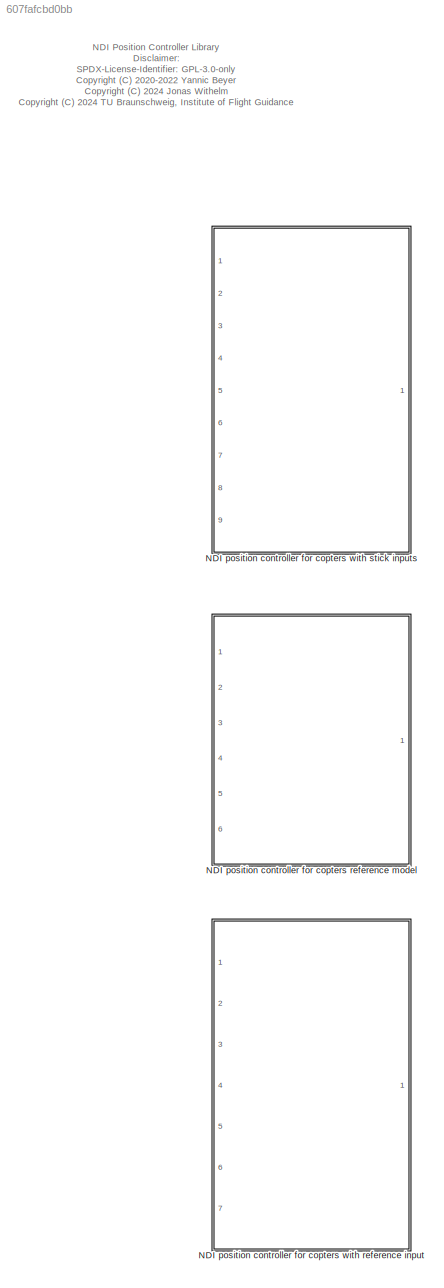
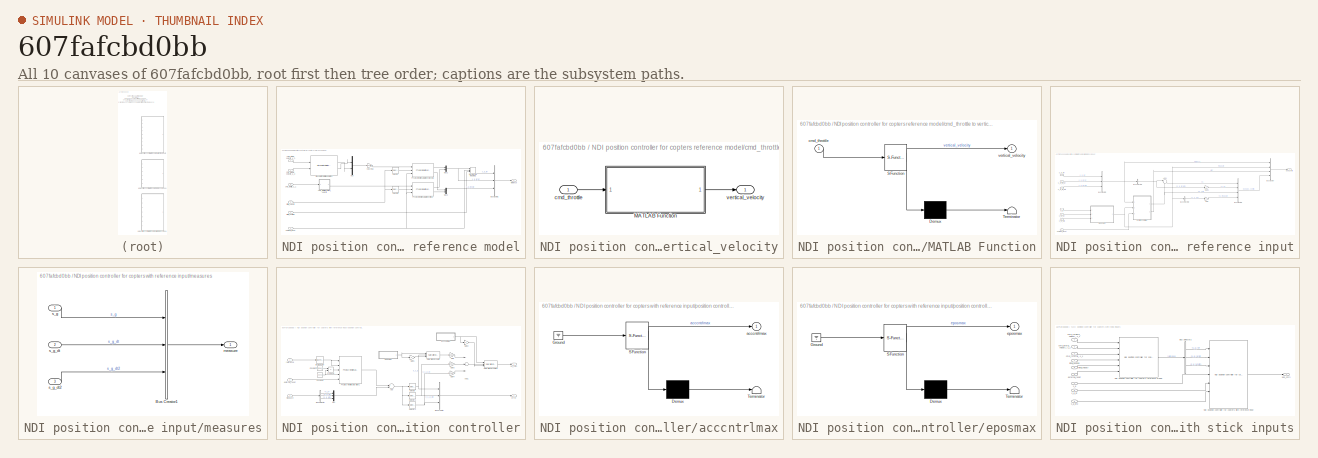
[diagram: thumbnail index - all 10 canvases of the model, root first then tree order]
MODEL slx_607fafcbd0bb
KIND library
CONFIG AbsTol = auto
CONFIG EnableMultiTasking = off
CONFIG FixedStep = auto
CONFIG MaxStep = auto
CONFIG MinStep = auto
CONFIG RelTol = 1e-3
CONFIG SampleTimeConstraint = Unconstrained
CONFIG Solver = VariableStepAuto
CONFIG SolverName = VariableStepAuto
CONFIG StartTime = 0.0
CONFIG StopTime = 10.0
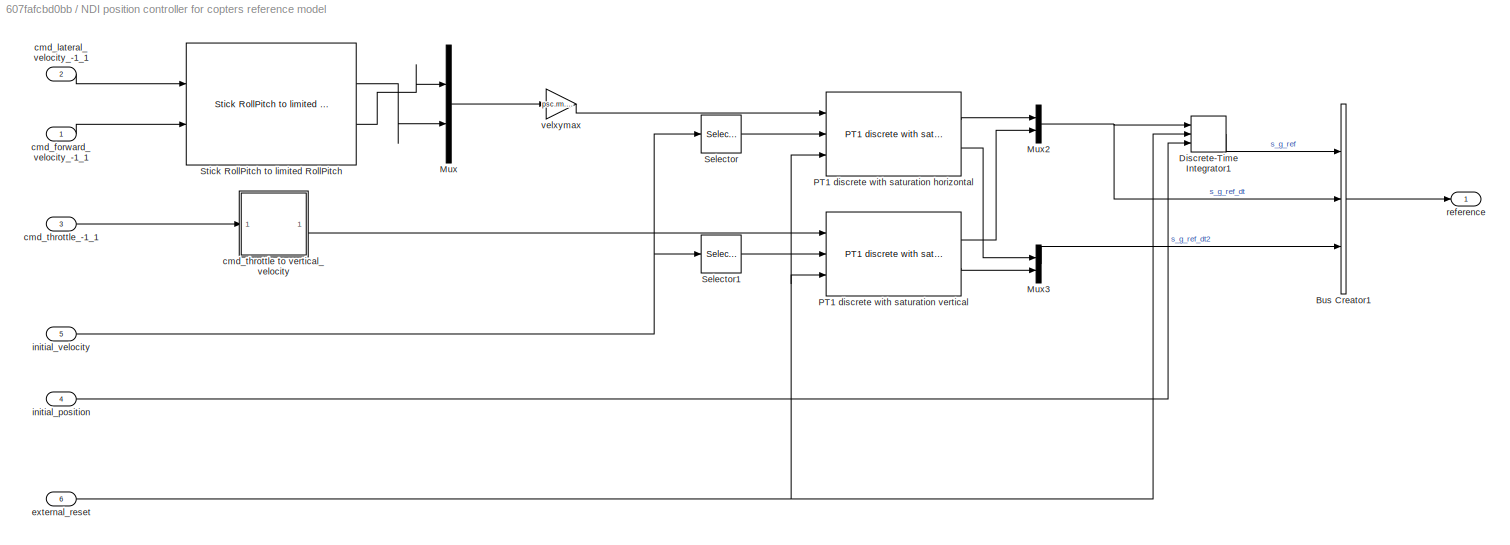
BLOCK [SubSystem] NDI position controller for copters reference model
  Ports = [6, 1]
  RequestExecContextInheritance = off
BLOCK [BusCreator] NDI position controller for copters reference model/Bus Creator1
  DisplayOption = bar
  InheritFromInputs = on
  Inputs = 3
  Ports = [3, 1]
BLOCK [DiscreteIntegrator] NDI position controller for copters reference model/Discrete-Time Integrator1
  ExternalReset = rising
  ICPrevOutput = DiscIntNeverNeededParam
  ICPrevScaledInput = DiscIntNeverNeededParam
  InitialConditionSetting = Auto
  InitialConditionSource = external
  Ports = [3, 1]
  SampleTime = -1
BLOCK [Mux] NDI position controller for copters reference model/Mux
  DisplayOption = bar
  Inputs = 2
  Ports = [2, 1]
BLOCK [Mux] NDI position controller for copters reference model/Mux2
  DisplayOption = bar
  Inputs = 2
  Ports = [2, 1]
BLOCK [Mux] NDI position controller for copters reference model/Mux3
  DisplayOption = bar
  Inputs = 2
  Ports = [2, 1]
BLOCK [Reference] NDI position controller for copters reference model/PT1 discrete with saturation horizontal  REF=filters_lib/PT1 discrete with saturations  (lib defined in slx_a584fcc4ebc5)
  Ports = [3, 2]
  SourceBlock = filters_lib/PT1 discrete with saturations
  SourceProductName = LADAC
  SourceType = PT1 discrete with saturation
BLOCK [Reference] NDI position controller for copters reference model/PT1 discrete with saturation vertical  REF=filters_lib/PT1 discrete with saturations  (lib defined in slx_a584fcc4ebc5)
  Ports = [3, 2]
  SourceBlock = filters_lib/PT1 discrete with saturations
  SourceProductName = LADAC
  SourceType = PT1 discrete with saturation
BLOCK [Selector] NDI position controller for copters reference model/Selector
  IndexOptions = Index vector (dialog)
  Indices = [1 2]
  InputPortWidth = 3
  OutputSizes = 1
  Ports = [1, 1]
BLOCK [Selector] NDI position controller for copters reference model/Selector1
  IndexOptions = Index vector (dialog)
  Indices = [3]
  InputPortWidth = 3
  OutputSizes = 1
  Ports = [1, 1]
BLOCK [Reference] NDI position controller for copters reference model/Stick RollPitch to limited RollPitch  REF=stick_lib/Stick RollPitch to limited RollPitch  (lib defined in slx_52d6da400de7)
  Ports = [2, 2]
  SourceBlock = stick_lib/Stick RollPitch to limited RollPitch
  SourceProductName = LADAC
  SourceType = Stick RollPitch to limited RollPitch
BLOCK [Inport] NDI position controller for copters reference model/cmd_forward_velocity_-1_1
  IconDisplay = Port number
BLOCK [Inport] NDI position controller for copters reference model/cmd_lateral_velocity_-1_1
  IconDisplay = Port number
  Port = 2
BLOCK [SubSystem] NDI position controller for copters reference model/cmd_throttle to vertical_velocity
  Ports = [1, 1]
  RequestExecContextInheritance = off
BLOCK [SubSystem] NDI position controller for copters reference model/cmd_throttle to vertical_velocity/MATLAB Function
  ErrorFcn = Stateflow.Translate.translate
  PermitHierarchicalResolution = ExplicitOnly
  Ports = [1, 1]
  RequestExecContextInheritance = off
  SFBlockType = MATLAB Function
  TreatAsAtomicUnit = on
BLOCK [Demux] NDI position controller for copters reference model/cmd_throttle to vertical_velocity/MATLAB Function/ Demux 
  Outputs = 1
  Ports = [1, 1]
BLOCK [S-Function] NDI position controller for copters reference model/cmd_throttle to vertical_velocity/MATLAB Function/ SFunction 
  EnableBusSupport = off
  FunctionName = sf_sfun
  Parameters = veldmax,velumax
  PortCounts = [1 2]
  Ports = [1, 2]
  SFcnIsStateOwnerBlock = off
  SFunctionDeploymentMode = off
  Tag = Stateflow S-Function cntrlPosNdi_lib 12
BLOCK [Terminator] NDI position controller for copters reference model/cmd_throttle to vertical_velocity/MATLAB Function/ Terminator 
BLOCK [Inport] NDI position controller for copters reference model/cmd_throttle to vertical_velocity/MATLAB Function/cmd_throttle
  IconDisplay = Port number
BLOCK [Outport] NDI position controller for copters reference model/cmd_throttle to vertical_velocity/MATLAB Function/vertical_velocity
  IconDisplay = Port number
BLOCK [Inport] NDI position controller for copters reference model/cmd_throttle to vertical_velocity/cmd_throttle
  IconDisplay = Port number
BLOCK [Outport] NDI position controller for copters reference model/cmd_throttle to vertical_velocity/vertical_velocity
  IconDisplay = Port number
BLOCK [Inport] NDI position controller for copters reference model/cmd_throttle_-1_1
  IconDisplay = Port number
  Port = 3
BLOCK [Inport] NDI position controller for copters reference model/external_reset
  IconDisplay = Port number
  Port = 6
BLOCK [Inport] NDI position controller for copters reference model/initial_position
  IconDisplay = Port number
  Port = 4
BLOCK [Inport] NDI position controller for copters reference model/initial_velocity
  IconDisplay = Port number
  Port = 5
BLOCK [Outport] NDI position controller for copters reference model/reference
  IconDisplay = Port number
BLOCK [Gain] NDI position controller for copters reference model/velxymax
  Gain = psc.rm.velxymax
  OutDataTypeStr = Inherit: Inherit via internal rule
  ParamDataTypeStr = Inherit: Inherit via internal rule
  SaturateOnIntegerOverflow = off
BLOCK [SubSystem] NDI position controller for copters with reference input
  Ports = [7, 1]
  RequestExecContextInheritance = off
BLOCK [Sum] NDI position controller for copters with reference input/Add1
  IconShape = round
  InputSameDT = off
  Inputs = |++
  OutDataTypeStr = Inherit: Inherit via internal rule
  Ports = [2, 1]
  SaturateOnIntegerOverflow = off
BLOCK [BusCreator] NDI position controller for copters with reference input/Bus Creator
  DisplayOption = bar
  InheritFromInputs = on
  Inputs = 4
  Ports = [4, 1]
BLOCK [BusCreator] NDI position controller for copters with reference input/Bus Creator1
  DisplayOption = bar
  InheritFromInputs = on
  Inputs = 4
  Ports = [4, 1]
BLOCK [BusCreator] NDI position controller for copters with reference input/Bus Creator2
  DisplayOption = bar
  InheritFromInputs = on
  Inputs = 3
  Ports = [3, 1]
BLOCK [BusSelector] NDI position controller for copters with reference input/Bus Selector1
  OutputAsBus = off
  OutputSignals = s_g_ref_dt2
  Ports = [1, 1]
BLOCK [BusSelector] NDI position controller for copters with reference input/Bus Selector2
  OutputAsBus = off
  OutputSignals = s_g_dt2
  Ports = [1, 1]
BLOCK [Gain] NDI position controller for copters with reference input/Gain
  OutDataTypeStr = Inherit: Inherit via internal rule
  ParamDataTypeStr = Inherit: Inherit via internal rule
  SaturateOnIntegerOverflow = off
BLOCK [Gain] NDI position controller for copters with reference input/Gain1
  OutDataTypeStr = Inherit: Inherit via internal rule
  ParamDataTypeStr = Inherit: Inherit via internal rule
  SaturateOnIntegerOverflow = off
BLOCK [Inport] NDI position controller for copters with reference input/external_reset
  IconDisplay = Port number
  Port = 7
BLOCK [SubSystem] NDI position controller for copters with reference input/measures
  Ports = [3, 1]
  RequestExecContextInheritance = off
BLOCK [BusCreator] NDI position controller for copters with reference input/measures/Bus Creator1
  DisplayOption = bar
  InheritFromInputs = on
  Inputs = 3
  Ports = [3, 1]
BLOCK [Outport] NDI position controller for copters with reference input/measures/measure
  IconDisplay = Port number
BLOCK [Inport] NDI position controller for copters with reference input/measures/s_g
  IconDisplay = Port number
BLOCK [Inport] NDI position controller for copters with reference input/measures/s_g_dt
  IconDisplay = Port number
  Port = 2
BLOCK [Inport] NDI position controller for copters with reference input/measures/s_g_dt2
  IconDisplay = Port number
  Port = 3
BLOCK [Outport] NDI position controller for copters with reference input/pos_cntrl
  IconDisplay = Port number
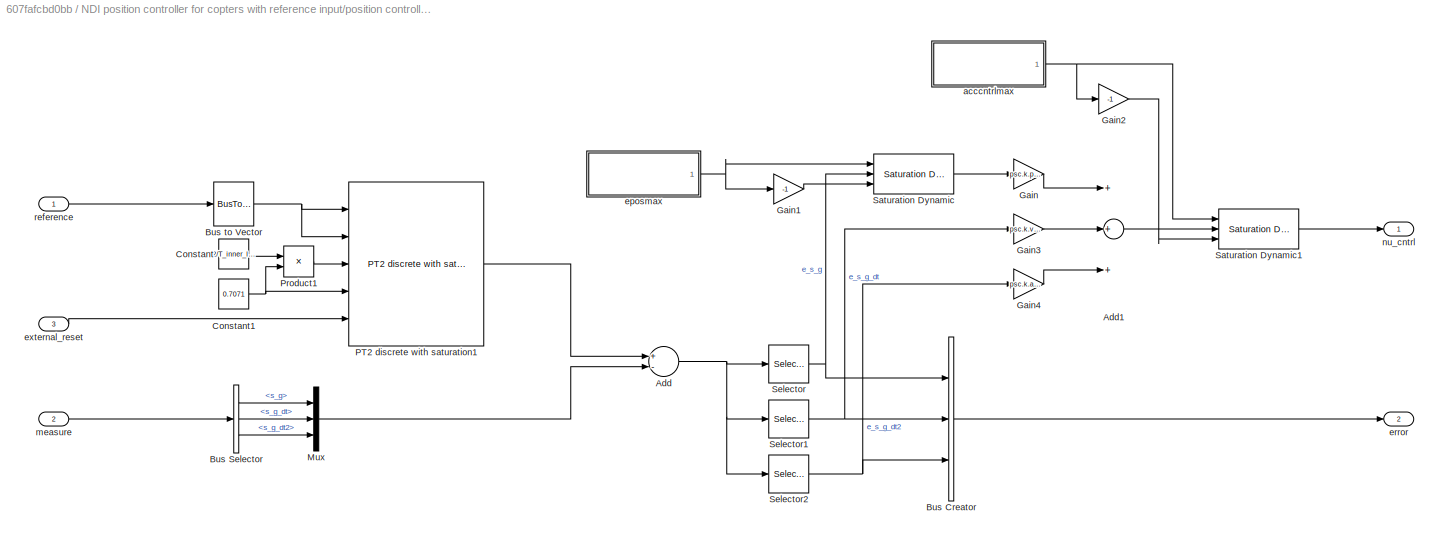
BLOCK [SubSystem] NDI position controller for copters with reference input/position controller
  Ports = [3, 2]
  RequestExecContextInheritance = off
BLOCK [Sum] NDI position controller for copters with reference input/position controller/Add
  InputSameDT = off
  Inputs = +-
  OutDataTypeStr = Inherit: Inherit via internal rule
  Ports = [2, 1]
  SaturateOnIntegerOverflow = off
BLOCK [Sum] NDI position controller for copters with reference input/position controller/Add1
  InputSameDT = off
  Inputs = +++
  OutDataTypeStr = Inherit: Inherit via internal rule
  Ports = [3, 1]
  SaturateOnIntegerOverflow = off
BLOCK [BusCreator] NDI position controller for copters with reference input/position controller/Bus Creator
  DisplayOption = bar
  InheritFromInputs = on
  Inputs = 3
  Ports = [3, 1]
BLOCK [BusSelector] NDI position controller for copters with reference input/position controller/Bus Selector
  OutputAsBus = off
  OutputSignals = s_g,s_g_dt,s_g_dt2
  Ports = [1, 3]
BLOCK [BusToVector] NDI position controller for copters with reference input/position controller/Bus to Vector
BLOCK [Constant] NDI position controller for copters with reference input/position controller/Constant
  Value = 2/T_inner_loop
BLOCK [Constant] NDI position controller for copters with reference input/position controller/Constant1
  Value = 0.7071
BLOCK [Gain] NDI position controller for copters with reference input/position controller/Gain
  Gain = psc.k.pos
  OutDataTypeStr = Inherit: Inherit via internal rule
  ParamDataTypeStr = Inherit: Inherit via internal rule
  SaturateOnIntegerOverflow = off
BLOCK [Gain] NDI position controller for copters with reference input/position controller/Gain1
  Gain = -1
  OutDataTypeStr = Inherit: Inherit via internal rule
  ParamDataTypeStr = Inherit: Inherit via internal rule
  SaturateOnIntegerOverflow = off
BLOCK [Gain] NDI position controller for copters with reference input/position controller/Gain2
  Gain = -1
  OutDataTypeStr = Inherit: Inherit via internal rule
  ParamDataTypeStr = Inherit: Inherit via internal rule
  SaturateOnIntegerOverflow = off
BLOCK [Gain] NDI position controller for copters with reference input/position controller/Gain3
  Gain = psc.k.vel
  OutDataTypeStr = Inherit: Inherit via internal rule
  ParamDataTypeStr = Inherit: Inherit via internal rule
  SaturateOnIntegerOverflow = off
BLOCK [Gain] NDI position controller for copters with reference input/position controller/Gain4
  Gain = psc.k.acc
  OutDataTypeStr = Inherit: Inherit via internal rule
  ParamDataTypeStr = Inherit: Inherit via internal rule
  SaturateOnIntegerOverflow = off
BLOCK [Mux] NDI position controller for copters with reference input/position controller/Mux
  DisplayOption = bar
  Inputs = 3
  Ports = [3, 1]
BLOCK [Reference] NDI position controller for copters with reference input/position controller/PT2 discrete with saturation1  REF=filters_lib/PT2 discrete with saturation  (lib defined in slx_a584fcc4ebc5)
  Ports = [5, 1]
  SourceBlock = filters_lib/PT2 discrete with saturation
  SourceProductName = LADAC
  SourceType = PT2 discrete with saturation
BLOCK [Product] NDI position controller for copters with reference input/position controller/Product1
  InputSameDT = off
  OutDataTypeStr = Inherit: Inherit via internal rule
  Ports = [2, 1]
  RndMeth = Floor
  SaturateOnIntegerOverflow = off
BLOCK [Reference] NDI position controller for copters with reference input/position controller/Saturation Dynamic  REF=simulink/Discontinuities/Saturation
Dynamic
  Ports = [3, 1]
  SourceBlock = simulink/Discontinuities/Saturation\nDynamic
  SourceProductBaseCode = SL
  SourceProductName = Simulink
  SourceType = Saturation Dynamic
BLOCK [Reference] NDI position controller for copters with reference input/position controller/Saturation Dynamic1  REF=simulink/Discontinuities/Saturation
Dynamic
  Ports = [3, 1]
  SourceBlock = simulink/Discontinuities/Saturation\nDynamic
  SourceProductBaseCode = SL
  SourceProductName = Simulink
  SourceType = Saturation Dynamic
BLOCK [Selector] NDI position controller for copters with reference input/position controller/Selector
  IndexOptions = Index vector (dialog)
  Indices = 1:3
  InputPortWidth = 9
  OutputSizes = 1
  Ports = [1, 1]
BLOCK [Selector] NDI position controller for copters with reference input/position controller/Selector1
  IndexOptions = Index vector (dialog)
  Indices = 4:6
  InputPortWidth = 9
  OutputSizes = 1
  Ports = [1, 1]
BLOCK [Selector] NDI position controller for copters with reference input/position controller/Selector2
  IndexOptions = Index vector (dialog)
  Indices = 7:9
  InputPortWidth = 9
  OutputSizes = 1
  Ports = [1, 1]
BLOCK [SubSystem] NDI position controller for copters with reference input/position controller/acccntrlmax
  ErrorFcn = Stateflow.Translate.translate
  PermitHierarchicalResolution = ExplicitOnly
  Ports = [0, 1]
  RequestExecContextInheritance = off
  SFBlockType = MATLAB Function
  TreatAsAtomicUnit = on
BLOCK [Demux] NDI position controller for copters with reference input/position controller/acccntrlmax/ Demux 
  Outputs = 1
  Ports = [1, 1]
BLOCK [Ground] NDI position controller for copters with reference input/position controller/acccntrlmax/ Ground 
BLOCK [S-Function] NDI position controller for copters with reference input/position controller/acccntrlmax/ SFunction 
  EnableBusSupport = off
  FunctionName = sf_sfun
  Parameters = psc
  PortCounts = [1 2]
  Ports = [1, 2]
  SFcnIsStateOwnerBlock = off
  SFunctionDeploymentMode = off
  Tag = Stateflow S-Function cntrlPosNdi_lib 3
BLOCK [Terminator] NDI position controller for copters with reference input/position controller/acccntrlmax/ Terminator 
BLOCK [Outport] NDI position controller for copters with reference input/position controller/acccntrlmax/acccntrlmax
  IconDisplay = Port number
BLOCK [SubSystem] NDI position controller for copters with reference input/position controller/eposmax
  ErrorFcn = Stateflow.Translate.translate
  PermitHierarchicalResolution = ExplicitOnly
  Ports = [0, 1]
  RequestExecContextInheritance = off
  SFBlockType = MATLAB Function
  TreatAsAtomicUnit = on
BLOCK [Demux] NDI position controller for copters with reference input/position controller/eposmax/ Demux 
  Outputs = 1
  Ports = [1, 1]
BLOCK [Ground] NDI position controller for copters with reference input/position controller/eposmax/ Ground 
BLOCK [S-Function] NDI position controller for copters with reference input/position controller/eposmax/ SFunction 
  EnableBusSupport = off
  FunctionName = sf_sfun
  Parameters = psc
  PortCounts = [1 2]
  Ports = [1, 2]
  SFcnIsStateOwnerBlock = off
  SFunctionDeploymentMode = off
  Tag = Stateflow S-Function cntrlPosNdi_lib 2
BLOCK [Terminator] NDI position controller for copters with reference input/position controller/eposmax/ Terminator 
BLOCK [Outport] NDI position controller for copters with reference input/position controller/eposmax/eposmax
  IconDisplay = Port number
BLOCK [Outport] NDI position controller for copters with reference input/position controller/error
  IconDisplay = Port number
  Port = 2
BLOCK [Inport] NDI position controller for copters with reference input/position controller/external_reset
  IconDisplay = Port number
  Port = 3
BLOCK [Inport] NDI position controller for copters with reference input/position controller/measure
  IconDisplay = Port number
  Port = 2
BLOCK [Outport] NDI position controller for copters with reference input/position controller/nu_cntrl
  IconDisplay = Port number
BLOCK [Inport] NDI position controller for copters with reference input/position controller/reference
  IconDisplay = Port number
BLOCK [Inport] NDI position controller for copters with reference input/s_g
  IconDisplay = Port number
  Port = 4
BLOCK [Inport] NDI position controller for copters with reference input/s_g_dt
  IconDisplay = Port number
  Port = 5
BLOCK [Inport] NDI position controller for copters with reference input/s_g_dt2
  IconDisplay = Port number
  Port = 6
BLOCK [Inport] NDI position controller for copters with reference input/s_g_ref
  IconDisplay = Port number
BLOCK [Inport] NDI position controller for copters with reference input/s_g_ref_dt
  IconDisplay = Port number
  Port = 2
BLOCK [Inport] NDI position controller for copters with reference input/s_g_ref_dt2
  IconDisplay = Port number
  Port = 3
BLOCK [SubSystem] NDI position controller for copters with stick inputs
  Ports = [9, 1]
  RequestExecContextInheritance = off
BLOCK [BusSelector] NDI position controller for copters with stick inputs/Bus Selector2
  OutputAsBus = off
  OutputSignals = s_g_ref,s_g_ref_dt,s_g_ref_dt2
  Ports = [1, 3]
BLOCK [Reference] NDI position controller for copters with stick inputs/NDI position controller for copters reference model  REF=$bdroot/NDI position controller for copters
reference model
  Ports = [6, 1]
  SourceBlock = $bdroot/NDI position controller for copters\nreference model
BLOCK [Reference] NDI position controller for copters with stick inputs/NDI position controller for copters with reference input  REF=$bdroot/NDI position controller for copters
with reference input
  Ports = [7, 1]
  SourceBlock = $bdroot/NDI position controller for copters\nwith reference input
BLOCK [Inport] NDI position controller for copters with stick inputs/cmd_forward_velocity_-1_1
  IconDisplay = Port number
BLOCK [Inport] NDI position controller for copters with stick inputs/cmd_lateral_velocity_-1_1
  IconDisplay = Port number
  Port = 2
BLOCK [Inport] NDI position controller for copters with stick inputs/cmd_throttle_-1_1
  IconDisplay = Port number
  Port = 3
BLOCK [Inport] NDI position controller for copters with stick inputs/external_reset
  IconDisplay = Port number
  Port = 9
BLOCK [Inport] NDI position controller for copters with stick inputs/initial_position
  IconDisplay = Port number
  Port = 7
BLOCK [Inport] NDI position controller for copters with stick inputs/initial_velocity
  IconDisplay = Port number
  Port = 8
BLOCK [Outport] NDI position controller for copters with stick inputs/pos_cntrl
  IconDisplay = Port number
BLOCK [Inport] NDI position controller for copters with stick inputs/s_g
  IconDisplay = Port number
  Port = 4
BLOCK [Inport] NDI position controller for copters with stick inputs/s_g_dt
  IconDisplay = Port number
  Port = 5
BLOCK [Inport] NDI position controller for copters with stick inputs/s_g_dt2
  IconDisplay = Port number
  Port = 6
ANNOTATION (root): NDI Position Controller Library Disclaimer: SPDX-License-Identifier: GPL-3.0-only <copyright redacted>
CHART NDI position controller for copters
with reference input/position controller/eposmax states=1 transitions=1
  STATE_LABEL 'eML_blk_kernel()'
  STATE_LABEL 'SCRIPT:\nfunction eposmax = fcn(psc)\neposmax = abs( divideFinite( psc.k.vel * psc.rm.velxymax * 0.7, psc.k.pos ) );\nend\n'
CHART NDI position controller for copters
with reference input/position controller/acccntrlmax states=1 transitions=1
  STATE_LABEL 'eML_blk_kernel()'
  STATE_LABEL 'SCRIPT:\nfunction acccntrlmax = fcn(psc)\nacccntrlmax = abs( 0.75 * psc.rm.accxymax );\nend\n'
CHART NDI position controller for copters
reference model/cmd_throttle to vertical_velocity/MATLAB Function states=1 transitions=1
  STATE_LABEL 'eML_blk_kernel()'
  STATE_LABEL 'SCRIPT:\nfunction vertical_velocity = fcn(cmd_throttle, veldmax, velumax)\n    \n    if cmd_throttle < 0\n        vertical_velocity = -veldmax * cmd_throttle;\n    else\n        vertical_velocity = -velumax * cmd_throttle;\n    end\n\nend\n'
